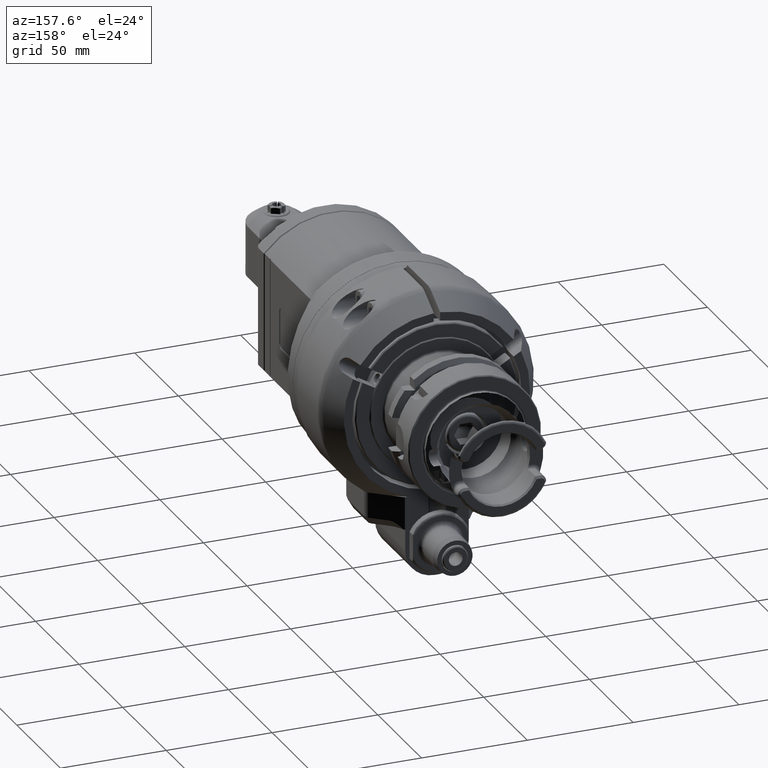
[diagram: clean part render]
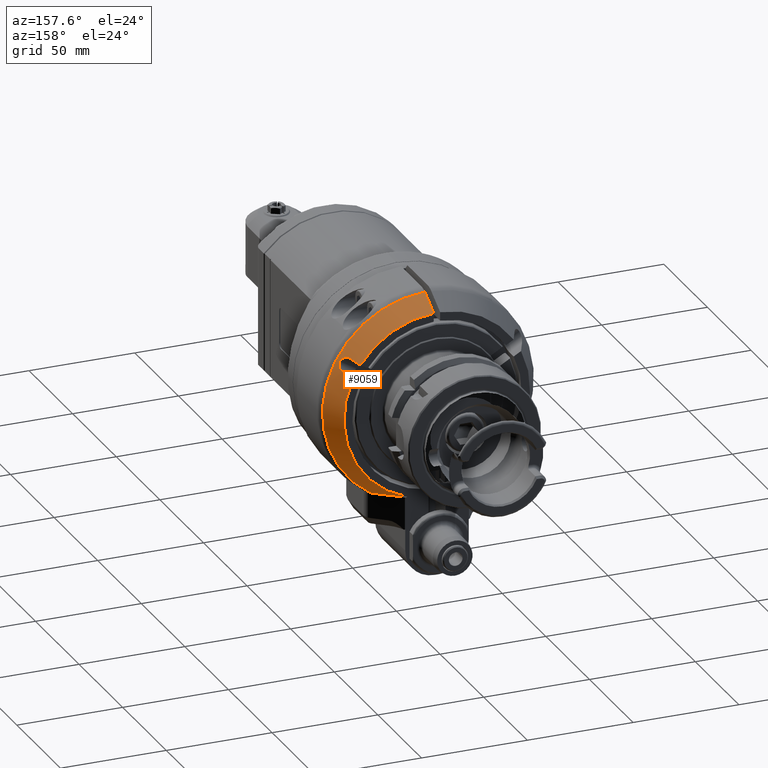
[diagram: same view with one face highlighted and labeled with its STEP entity id]
A machine part, auxiliary view. The second image highlights one B-rep face of the part: STEP entity #9059.
In plain terms, the highlighted conical surface has half-angle 30 deg.
Its self-contained STEP definition (entity closure, byte-faithful):
#57=CONICAL_SURFACE('',#9825,1.84898037854882,0.523598775598299);
#139=(
BOUNDED_CURVE()
B_SPLINE_CURVE(2,(#14499,#14500,#14501),.UNSPECIFIED.,.F.,.F.)
B_SPLINE_CURVE_WITH_KNOTS((3,3),(-4.92391023083954,-2.81130786844121),
 .UNSPECIFIED.)
CURVE()
GEOMETRIC_REPRESENTATION_ITEM()
RATIONAL_B_SPLINE_CURVE((1.0074989594549,1.03062027413363,1.03252076511009))
REPRESENTATION_ITEM('')
);
#442=B_SPLINE_CURVE_WITH_KNOTS('',3,(#14766,#14767,#14768,#14769,#14770,
#14771,#14772,#14773,#14774,#14775,#14776,#14777,#14778,#14779,#14780,#14781,
#14782,#14783),.UNSPECIFIED.,.F.,.F.,(4,2,2,2,2,2,2,2,4),(1.11206982951603,
1.24885677734264,1.4029266724495,1.5444028479349,1.68587902342029,1.82735519890569,
1.96883137439109,2.12290126949794,2.25968821731982),.UNSPECIFIED.);
#444=B_SPLINE_CURVE_WITH_KNOTS('',3,(#14810,#14811,#14812,#14813,#14814,
#14815,#14816,#14817,#14818,#14819),.UNSPECIFIED.,.F.,.F.,(4,3,3,4),(0.,
0.3333333333333,0.6666666666667,1.),.UNSPECIFIED.);
#446=B_SPLINE_CURVE_WITH_KNOTS('',3,(#14837,#14838,#14839,#14840,#14841,
#14842,#14843,#14844,#14845,#14846),.UNSPECIFIED.,.F.,.F.,(4,3,3,4),(0.,
0.3333333333333,0.6666666666667,1.),.UNSPECIFIED.);
#447=B_SPLINE_CURVE_WITH_KNOTS('',3,(#14848,#14849,#14850,#14851,#14852,
#14853,#14854,#14855,#14856,#14857),.UNSPECIFIED.,.F.,.F.,(4,3,3,4),(0.,
0.3333333333333,0.6666666666667,1.),.UNSPECIFIED.);
#2169=FACE_OUTER_BOUND('',#2734,.T.);
#2734=EDGE_LOOP('',(#6800,#6801,#6802,#6803,#6804,#6805,#6806,#6807));
#3278=CIRCLE('',#9826,1.96567729253071);
#3279=CIRCLE('',#9827,1.73228346456693);
#3280=CIRCLE('',#9828,1.73228346456693);
#3830=VERTEX_POINT('',#14496);
#3831=VERTEX_POINT('',#14498);
#3872=VERTEX_POINT('',#14764);
#3873=VERTEX_POINT('',#14765);
#3878=VERTEX_POINT('',#14808);
#3879=VERTEX_POINT('',#14809);
#3882=VERTEX_POINT('',#14835);
#3883=VERTEX_POINT('',#14847);
#4877=EDGE_CURVE('',#3830,#3831,#139,.T.);
#4939=EDGE_CURVE('',#3872,#3873,#442,.F.);
#4948=EDGE_CURVE('',#3878,#3879,#444,.T.);
#4953=EDGE_CURVE('',#3831,#3879,#3278,.T.);
#4954=EDGE_CURVE('',#3882,#3830,#3279,.T.);
#4955=EDGE_CURVE('',#3882,#3873,#446,.T.);
#4956=EDGE_CURVE('',#3872,#3883,#447,.T.);
#4957=EDGE_CURVE('',#3878,#3883,#3280,.T.);
#6800=ORIENTED_EDGE('',*,*,#4953,.F.);
#6801=ORIENTED_EDGE('',*,*,#4877,.F.);
#6802=ORIENTED_EDGE('',*,*,#4954,.F.);
#6803=ORIENTED_EDGE('',*,*,#4955,.T.);
#6804=ORIENTED_EDGE('',*,*,#4939,.F.);
#6805=ORIENTED_EDGE('',*,*,#4956,.T.);
#6806=ORIENTED_EDGE('',*,*,#4957,.F.);
#6807=ORIENTED_EDGE('',*,*,#4948,.T.);
#9059=ADVANCED_FACE('',(#2169),#57,.T.);
#9825=AXIS2_PLACEMENT_3D('',#14833,#11400,#11401);
#9826=AXIS2_PLACEMENT_3D('',#14834,#11402,#11403);
#9827=AXIS2_PLACEMENT_3D('',#14836,#11404,#11405);
#9828=AXIS2_PLACEMENT_3D('',#14858,#11406,#11407);
#11400=DIRECTION('center_axis',(0.,-1.,0.));
#11401=DIRECTION('ref_axis',(0.,0.,1.));
#11402=DIRECTION('center_axis',(0.,-1.,0.));
#11403=DIRECTION('ref_axis',(0.548423503116412,0.,-0.836200730225418));
#11404=DIRECTION('center_axis',(0.,1.,0.));
#11405=DIRECTION('ref_axis',(0.90305390423411,0.,0.429527235513105));
#11406=DIRECTION('center_axis',(0.,1.,0.));
#11407=DIRECTION('ref_axis',(0.0340909090909091,0.,0.999418736024773));
#14496=CARTESIAN_POINT('',(0.546858046578346,1.55511811023622,-1.64370078740157));
#14498=CARTESIAN_POINT('',(1.07802362676614,1.15086814203031,-1.64370078740157));
#14499=CARTESIAN_POINT('Ctrl Pts',(0.546858046578801,1.55511811023593,-1.64370078740157));
#14500=CARTESIAN_POINT('Ctrl Pts',(0.795678791833982,1.41906675857815,-1.64370078740157));
#14501=CARTESIAN_POINT('Ctrl Pts',(1.07802362676599,1.15086814203021,-1.64370078740157));
#14764=CARTESIAN_POINT('',(1.52526879656102,1.35826771653386,1.03972662919134));
#14765=CARTESIAN_POINT('',(1.66306407215,1.35826771653543,0.801058210824803));
#14766=CARTESIAN_POINT('Ctrl Pts',(1.66306407215008,1.35826771653552,0.801058210824958));
#14767=CARTESIAN_POINT('Ctrl Pts',(1.67097574241147,1.34248852393374,0.8056260157801));
#14768=CARTESIAN_POINT('Ctrl Pts',(1.67806849394415,1.32590657882429,0.812976615810833));
#14769=CARTESIAN_POINT('Ctrl Pts',(1.68929308353091,1.29266232191568,0.8337210022341));
#14770=CARTESIAN_POINT('Ctrl Pts',(1.69291480800402,1.2762514332339,0.847790660149594));
#14771=CARTESIAN_POINT('Ctrl Pts',(1.69457970143046,1.25074449090261,0.876961617278687));
#14772=CARTESIAN_POINT('Ctrl Pts',(1.69311068072095,1.2396022424625,0.89374848439536));
#14773=CARTESIAN_POINT('Ctrl Pts',(1.68424231049374,1.2244550060514,0.928600625725845));
#14774=CARTESIAN_POINT('Ctrl Pts',(1.67680753513085,1.22047244094488,0.946666618269862));
#14775=CARTESIAN_POINT('Ctrl Pts',(1.65824110790179,1.22047244094488,0.978824613545614));
#14776=CARTESIAN_POINT('Ctrl Pts',(1.64631288709554,1.2244550060514,0.994296314153317));
#14777=CARTESIAN_POINT('Ctrl Pts',(1.62056423244066,1.2396022424625,1.01940261872549));
#14778=CARTESIAN_POINT('Ctrl Pts',(1.60676088942242,1.25074449090261,1.02906826153694));
#14779=CARTESIAN_POINT('Ctrl Pts',(1.5806656527827,1.2762514332339,1.0422119000996));
#14780=CARTESIAN_POINT('Ctrl Pts',(1.56667010936877,1.29266232191568,1.04611022365812));
#14781=CARTESIAN_POINT('Ctrl Pts',(1.5430926489473,1.32590657882375,1.04676163714056));
#14782=CARTESIAN_POINT('Ctrl Pts',(1.53318046682159,1.34248852393259,1.04429443414608));
#14783=CARTESIAN_POINT('Ctrl Pts',(1.52526879656035,1.35826771653388,1.03972662919122));
#14808=CARTESIAN_POINT('',(0.0590551181102362,1.55511811023622,1.73127655059409));
#14809=CARTESIAN_POINT('',(0.0590551208106137,1.15086845310912,1.96478981189492));
#14810=CARTESIAN_POINT('Ctrl Pts',(0.0590551181102362,1.55511811023622,
1.73127655059409));
#14811=CARTESIAN_POINT('Ctrl Pts',(0.0590551181102362,1.51020174233858,
1.75722411007244));
#14812=CARTESIAN_POINT('Ctrl Pts',(0.0590551181102362,1.46528522012855,
1.78317108012795));
#14813=CARTESIAN_POINT('Ctrl Pts',(0.0590551181102362,1.42036864331586,
1.80911748978615));
#14814=CARTESIAN_POINT('Ctrl Pts',(0.0590551181102362,1.37545206650315,
1.83506389944435));
#14815=CARTESIAN_POINT('Ctrl Pts',(0.0590551181102362,1.33053543508779,
1.86100974870525));
#14816=CARTESIAN_POINT('Ctrl Pts',(0.0590551181102362,1.28561859272981,
1.88695519766907));
#14817=CARTESIAN_POINT('Ctrl Pts',(0.0590551181102362,1.24070175037184,
1.91290064663288));
#14818=CARTESIAN_POINT('Ctrl Pts',(0.0590551181102362,1.19578469707126,
1.93884569529961));
#14819=CARTESIAN_POINT('Ctrl Pts',(0.0590551181102362,1.15086876411299,
1.96478963229961));
#14833=CARTESIAN_POINT('Origin',(0.,1.35299312613307,0.));
#14834=CARTESIAN_POINT('Origin',(0.,1.15086814203031,0.));
#14835=CARTESIAN_POINT('',(1.56434534591732,1.55511811023622,0.744062927660236));
#14836=CARTESIAN_POINT('Origin',(0.,1.55511811023622,0.));
#14837=CARTESIAN_POINT('Ctrl Pts',(1.56434534591741,1.55511811023628,0.744062927660278));
#14838=CARTESIAN_POINT('Ctrl Pts',(1.57531604910847,1.53324623090918,0.750396866100883));
#14839=CARTESIAN_POINT('Ctrl Pts',(1.58628606561463,1.51137419916862,0.756730407060184));
#14840=CARTESIAN_POINT('Ctrl Pts',(1.59725543098271,1.48950203917053,0.763063572648252));
#14841=CARTESIAN_POINT('Ctrl Pts',(1.6082247963508,1.46762987917243,0.769396738236323));
#14842=CARTESIAN_POINT('Ctrl Pts',(1.6191935105626,1.44575759090217,0.77572952843247));
#14843=CARTESIAN_POINT('Ctrl Pts',(1.63016160674462,1.42388519669956,0.782061962203085));
#14844=CARTESIAN_POINT('Ctrl Pts',(1.64112970292665,1.40201280249696,0.788394395973698));
#14845=CARTESIAN_POINT('Ctrl Pts',(1.65209718106189,1.38014030234926,0.794726473303188));
#14846=CARTESIAN_POINT('Ctrl Pts',(1.66306407215013,1.35826771653552,0.801058210824865));
#14847=CARTESIAN_POINT('',(1.42655007032677,1.55511811023622,0.982731346026378));
#14848=CARTESIAN_POINT('Ctrl Pts',(1.52526879656064,1.35826771653359,1.03972662919108));
#14849=CARTESIAN_POINT('Ctrl Pts',(1.51430190547219,1.38014030234786,1.03339489166912));
#14850=CARTESIAN_POINT('Ctrl Pts',(1.50333442657769,1.40201280249704,1.02706281565296));
#14851=CARTESIAN_POINT('Ctrl Pts',(1.49236632997323,1.42388519670028,1.0207303826133));
#14852=CARTESIAN_POINT('Ctrl Pts',(1.48139823336875,1.44575759090353,1.01439794957363));
#14853=CARTESIAN_POINT('Ctrl Pts',(1.47042951907632,1.4676298791736,1.00806515951739));
#14854=CARTESIAN_POINT('Ctrl Pts',(1.45946015410679,1.48950203917151,1.00173199323924));
#14855=CARTESIAN_POINT('Ctrl Pts',(1.44849078913725,1.51137419916941,0.995398826961102));
#14856=CARTESIAN_POINT('Ctrl Pts',(1.43752077351764,1.53324623090979,0.989065284466482));
#14857=CARTESIAN_POINT('Ctrl Pts',(1.42655007032693,1.55511811023606,0.982731346026218));
#14858=CARTESIAN_POINT('Origin',(0.,1.55511811023622,0.));